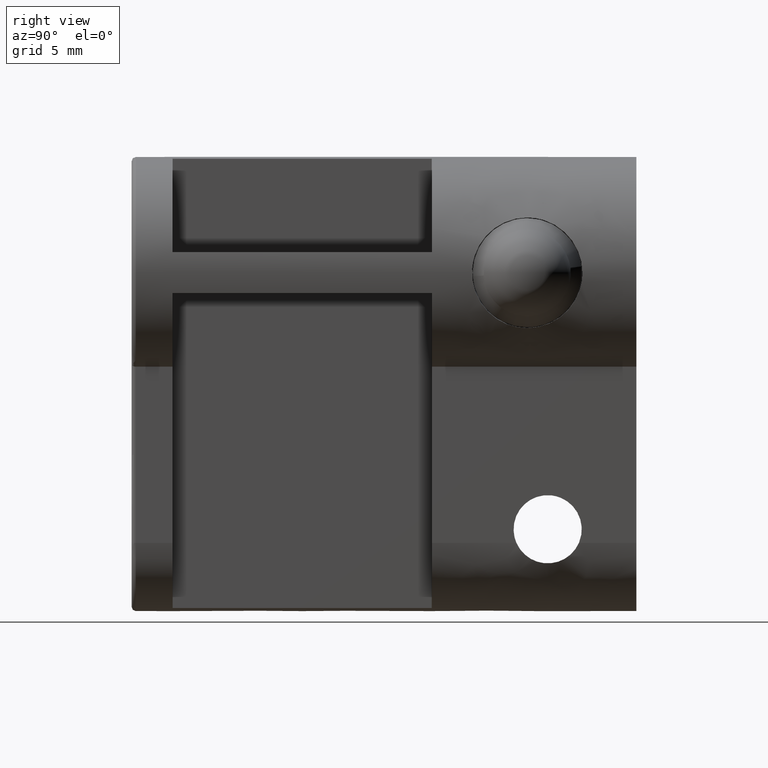
[diagram: clean part render]
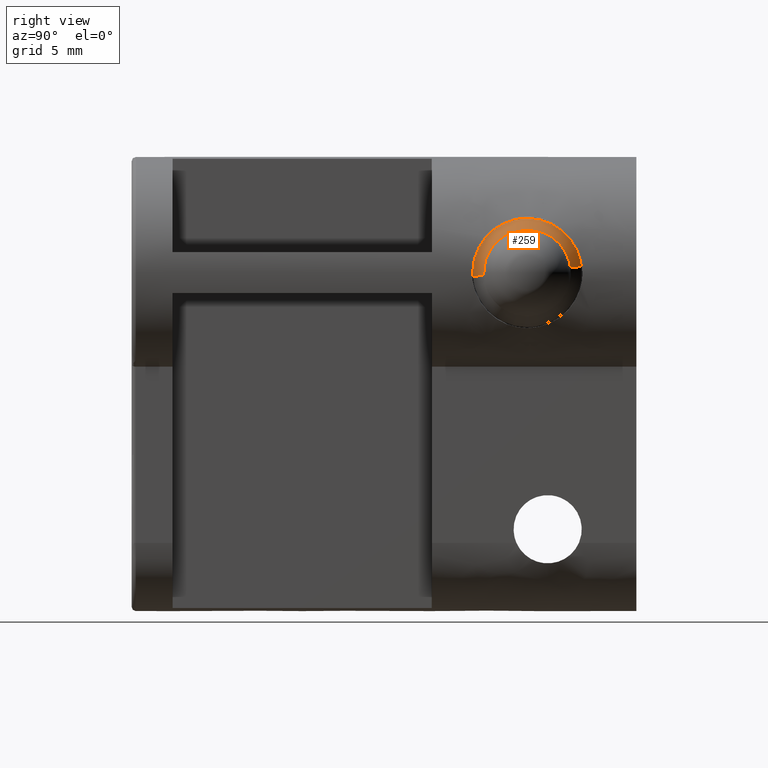
[diagram: same view with one face highlighted and labeled with its STEP entity id]
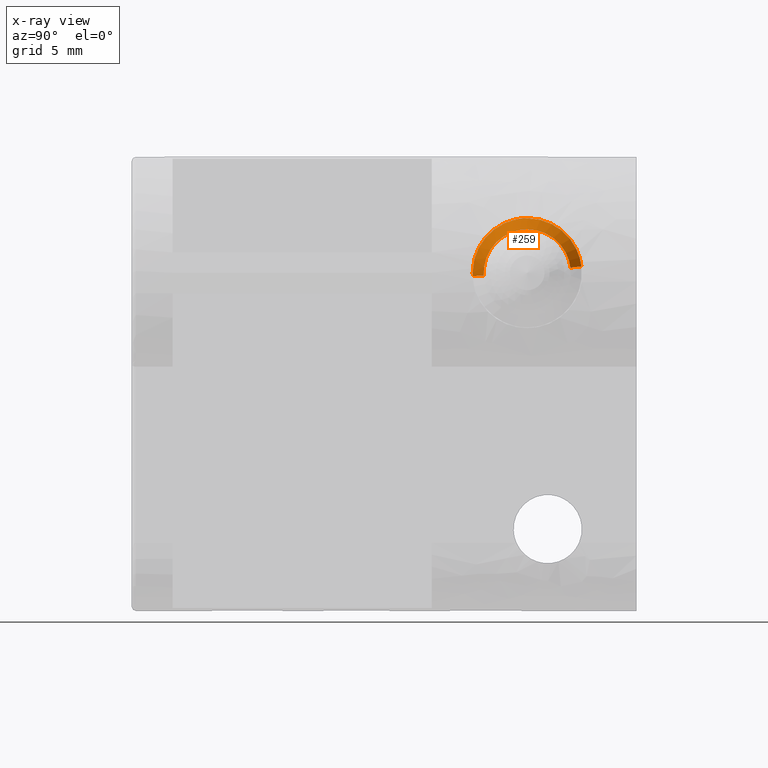
[diagram: x-ray of the same camera — body ghosted, the highlighted face saturated]
A machine part, right view. The second image highlights one B-rep face of the part: STEP entity #259.
The next image is the same camera in x-ray: the body ghosted, the highlighted face saturated — about 0% of this face is hidden behind the body in this view.
In plain terms, the highlighted face is a freeform B-spline surface patch.
Its self-contained STEP definition (entity closure, byte-faithful):
#66=CARTESIAN_POINT('',(7.449999999987557,32.972039482792667,0.472136938698804));
#67=VERTEX_POINT('',#66);
#85=CARTESIAN_POINT('',(8.849999999988228,32.169399438497237,0.376731002681226));
#86=VERTEX_POINT('',#85);
#87=CARTESIAN_POINT('',(8.849999999988228,32.169399438497237,0.376731002681226));
#88=CARTESIAN_POINT('',(7.449999999987557,32.972039482792667,0.472136938698804));
#89=QUASI_UNIFORM_CURVE('',1,(#87,#88),.UNSPECIFIED.,.F.,.U.);
#90=EDGE_CURVE('',#86,#67,#89,.T.);
#109=CARTESIAN_POINT('',(8.849999999994001,25.814244936029411,-0.194849211145805));
#110=VERTEX_POINT('',#109);
#124=CARTESIAN_POINT('',(7.449999999984635,25.007462183648311,-0.244194158227021));
#125=VERTEX_POINT('',#124);
#126=CARTESIAN_POINT('',(8.849999999994001,25.814244936029411,-0.194849211145805));
#127=CARTESIAN_POINT('',(7.449999999984635,25.007462183648311,-0.244194158227021));
#128=QUASI_UNIFORM_CURVE('',1,(#126,#127),.UNSPECIFIED.,.F.,.U.);
#129=EDGE_CURVE('',#110,#125,#128,.T.);
#162=CARTESIAN_POINT('',(8.885000000000002,25.834414504840272,-0.193615587436019));
#163=CARTESIAN_POINT('',(8.885000000000002,25.640798917404243,2.971971285063017));
#164=CARTESIAN_POINT('',(8.885000000000002,28.806385789903288,3.165586872499036));
#165=CARTESIAN_POINT('',(8.885000000000002,31.795818642252495,3.348428418512648));
#166=CARTESIAN_POINT('',(8.885000000000003,32.149333437391093,0.374345854212951));
#167=CARTESIAN_POINT('',(7.414124999999999,24.986788375622119,-0.245458622407013));
#168=CARTESIAN_POINT('',(7.414124999999999,24.741329753215116,3.767754379310166));
#169=CARTESIAN_POINT('',(7.414124999999999,28.754542754932292,4.013213001717179));
#170=CARTESIAN_POINT('',(7.414124999999998,32.544434258158418,4.245012696140548));
#171=CARTESIAN_POINT('',(7.414124999999999,32.992607133929027,0.474581715737386));
#179=(BOUNDED_SURFACE()B_SPLINE_SURFACE(2,1,((#162,#167),(#163,#168),(#164,#169),(#165,#170),(#166,#171)),.UNSPECIFIED.,.F.,.F.,.U.)B_SPLINE_SURFACE_WITH_KNOTS((3,2,3),(2,2),(0.0,6.661734493703936,13.056999607659719),(0.0,1.0),.UNSPECIFIED.)GEOMETRIC_REPRESENTATION_ITEM()RATIONAL_B_SPLINE_SURFACE(((1.0,1.0),(0.707106781186548,0.707106781186548),(1.0,1.0),(0.718822509939086,0.718822509939086),(0.977505800795127,0.977505800795127)))REPRESENTATION_ITEM('')SURFACE());
#180=CARTESIAN_POINT('',(7.450000000000000,29.000001377339299,4.0));
#181=VERTEX_POINT('',#180);
#182=CARTESIAN_POINT('',(7.450000000000000,29.000001377339299,4.0));
#183=CARTESIAN_POINT('',(7.450000000000000,32.552699481017001,4.0));
#184=CARTESIAN_POINT('',(7.449999999987557,32.972039482792667,0.472136938698804));
#192=(BOUNDED_CURVE()B_SPLINE_CURVE(2,(#182,#183,#184),.UNSPECIFIED.,.F.,.U.)B_SPLINE_CURVE_WITH_KNOTS((3,3),(0.0,0.229562473509609),.UNSPECIFIED.)CURVE()GEOMETRIC_REPRESENTATION_ITEM()RATIONAL_B_SPLINE_CURVE((1.0,0.731050832859971,0.956026754176057))REPRESENTATION_ITEM(''));
#193=EDGE_CURVE('',#181,#67,#192,.T.);
#194=ORIENTED_EDGE('',*,*,#193,.F.);
#195=CARTESIAN_POINT('',(7.450000000000000,25.000153685082871,0.034906142022186));
#196=VERTEX_POINT('',#195);
#197=CARTESIAN_POINT('',(7.450000000000000,25.000153685082871,0.034906142022186));
#198=CARTESIAN_POINT('',(7.449999999999999,25.034756535016275,4.000000000000001));
#199=CARTESIAN_POINT('',(7.450000000000000,29.000001377339299,4.0));
#207=(BOUNDED_CURVE()B_SPLINE_CURVE(2,(#197,#198,#199),.UNSPECIFIED.,.F.,.U.)B_SPLINE_CURVE_WITH_KNOTS((3,3),(0.751539894337514,1.0),.UNSPECIFIED.)CURVE()GEOMETRIC_REPRESENTATION_ITEM()RATIONAL_B_SPLINE_CURVE((0.996414028094558,0.708910879623136,1.0))REPRESENTATION_ITEM(''));
#208=EDGE_CURVE('',#196,#181,#207,.T.);
#209=ORIENTED_EDGE('',*,*,#208,.F.);
#210=CARTESIAN_POINT('',(7.449999999984636,25.007462183648308,-0.244194158227021));
#211=CARTESIAN_POINT('',(7.450000000000000,25.000001377339306,-0.122211053281652));
#212=CARTESIAN_POINT('',(7.450000000000000,25.000001377339299,0.0));
#213=CARTESIAN_POINT('',(7.450000000000000,25.000001377339306,0.017453403311491));
#214=CARTESIAN_POINT('',(7.450000000000000,25.000153685082871,0.034906142022186));
#222=(BOUNDED_CURVE()B_SPLINE_CURVE(2,(#210,#211,#212,#213,#214),.UNSPECIFIED.,.F.,.U.)B_SPLINE_CURVE_WITH_KNOTS((3,2,3),(0.739332962234444,0.750000000000000,0.751539894337513),.UNSPECIFIED.)CURVE()GEOMETRIC_REPRESENTATION_ITEM()RATIONAL_B_SPLINE_CURVE((0.976072041657076,0.987502787894567,1.0,0.998195901563412,0.996414028094559))REPRESENTATION_ITEM(''));
#223=EDGE_CURVE('',#125,#196,#222,.T.);
#224=ORIENTED_EDGE('',*,*,#223,.F.);
#225=ORIENTED_EDGE('',*,*,#129,.F.);
#226=CARTESIAN_POINT('',(8.850000000000000,29.000001377339299,3.191709623134525));
#227=VERTEX_POINT('',#226);
#228=CARTESIAN_POINT('',(8.849999999994001,25.814244936029411,-0.194849211145805));
#229=CARTESIAN_POINT('',(8.850000000000000,25.808291754204784,-0.097515548667435));
#230=CARTESIAN_POINT('',(8.850000000000000,25.808291754204781,0.0));
#231=CARTESIAN_POINT('',(8.850000000000000,25.808291754204781,3.191709623134525));
#232=CARTESIAN_POINT('',(8.850000000000000,29.000001377339299,3.191709623134525));
#240=(BOUNDED_CURVE()B_SPLINE_CURVE(2,(#228,#229,#230,#231,#232),.UNSPECIFIED.,.F.,.U.)B_SPLINE_CURVE_WITH_KNOTS((3,2,3),(0.739332962238298,0.750000000000000,1.0),.UNSPECIFIED.)CURVE()GEOMETRIC_REPRESENTATION_ITEM()RATIONAL_B_SPLINE_CURVE((0.976072041665336,0.987502787899082,1.0,0.707106781186548,1.0))REPRESENTATION_ITEM(''));
#241=EDGE_CURVE('',#110,#227,#240,.T.);
#242=ORIENTED_EDGE('',*,*,#241,.T.);
#243=CARTESIAN_POINT('',(8.850000000000000,29.000001377339299,3.191709623134525));
#244=CARTESIAN_POINT('',(8.850000000000000,31.834796558720299,3.191709623134525));
#245=CARTESIAN_POINT('',(8.849999999988228,32.169399438497237,0.376731002681226));
#253=(BOUNDED_CURVE()B_SPLINE_CURVE(2,(#243,#244,#245),.UNSPECIFIED.,.F.,.U.)B_SPLINE_CURVE_WITH_KNOTS((3,3),(0.0,0.229562473508485),.UNSPECIFIED.)CURVE()GEOMETRIC_REPRESENTATION_ITEM()RATIONAL_B_SPLINE_CURVE((1.0,0.731050832861288,0.956026754173853))REPRESENTATION_ITEM(''));
#254=EDGE_CURVE('',#227,#86,#253,.T.);
#255=ORIENTED_EDGE('',*,*,#254,.T.);
#256=ORIENTED_EDGE('',*,*,#90,.T.);
#257=EDGE_LOOP('',(#194,#209,#224,#225,#242,#255,#256));
#258=FACE_OUTER_BOUND('',#257,.T.);
#259=ADVANCED_FACE('',(#258),#179,.T.);